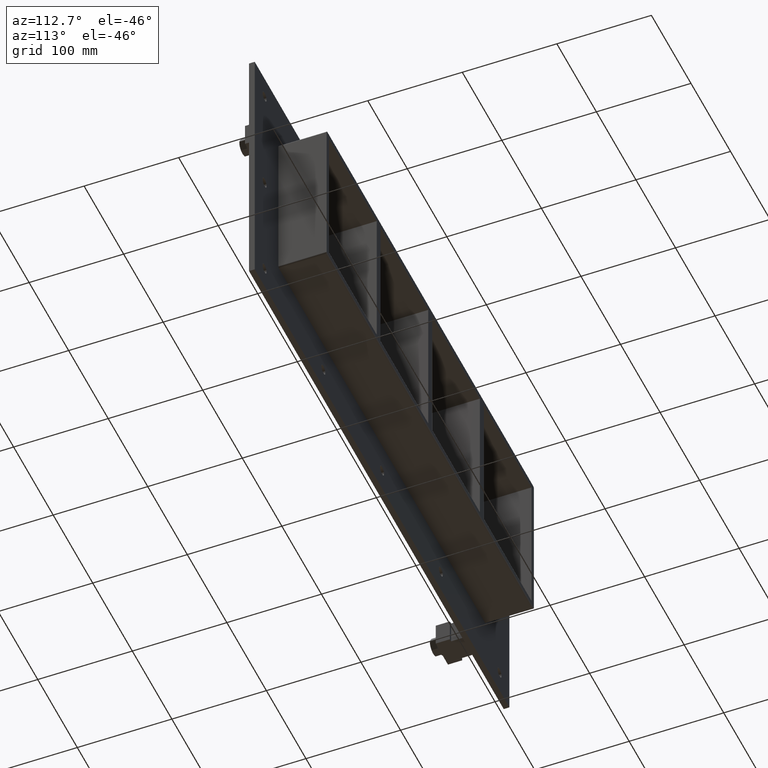
[diagram: clean part render]
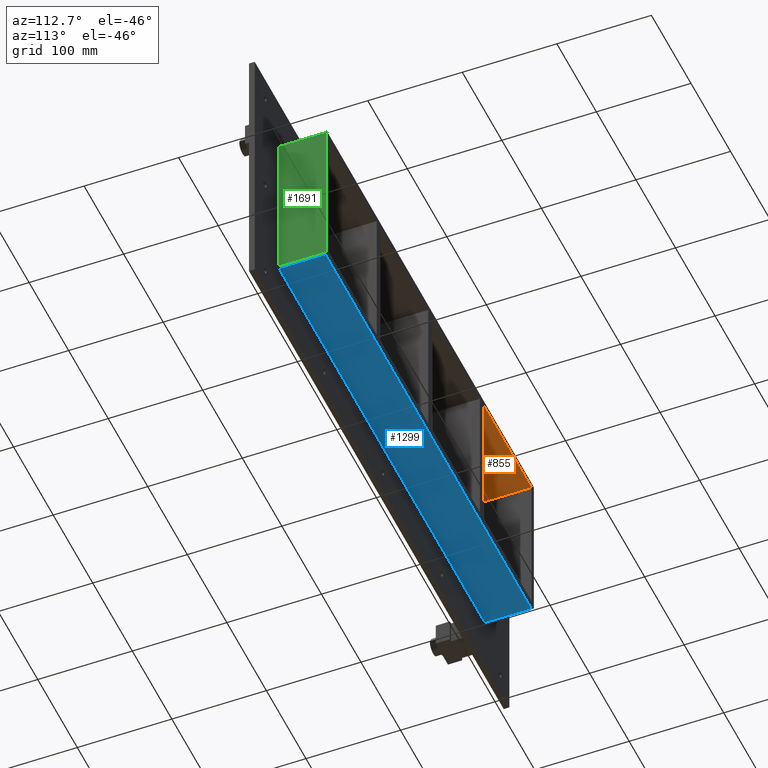
[diagram: same view with three faces highlighted in distinct colors, each labeled with its STEP entity id]
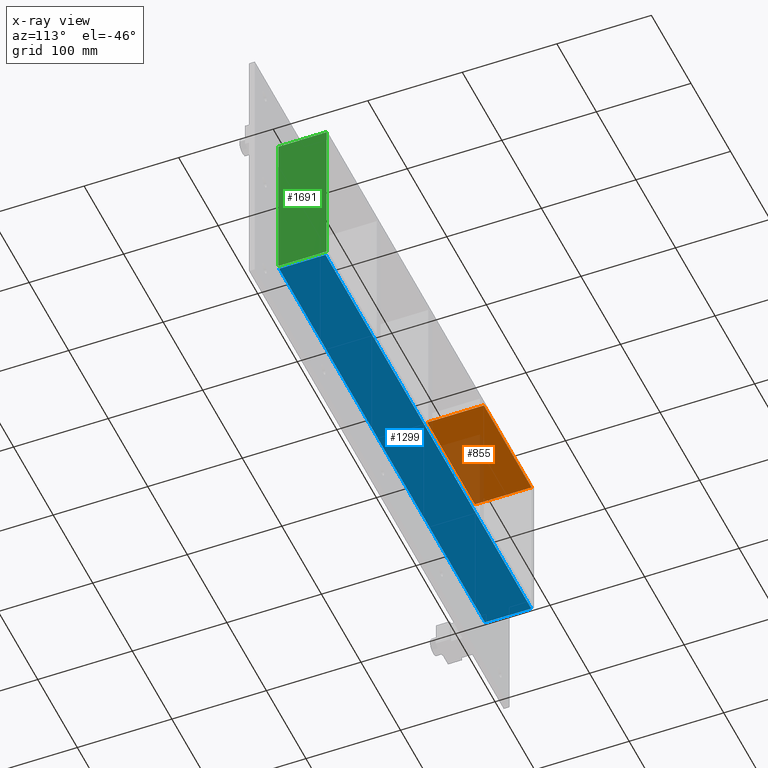
[diagram: x-ray of the same camera — body ghosted, the three highlighted faces saturated]
A machine part, auxiliary view with three faces highlighted in distinct colors.
The next image is the same camera in x-ray (body ghosted, the three faces saturated) — at least one of them is partly hidden behind the body in this view.
Their STEP definitions:

[orange] entity #855 — the highlighted planar face has unit normal (0, 0, 1).
#739=CARTESIAN_POINT('',(-135.50000000000031,-3.0,79.750000000000014));
#740=VERTEX_POINT('',#739);
#747=CARTESIAN_POINT('',(-135.50000000000031,57.0,79.750000000000014));
#748=VERTEX_POINT('',#747);
#749=CARTESIAN_POINT('',(-135.50000000000031,57.000000000000007,79.750000000000014));
#750=DIRECTION('',(0.0,-1.0,0.0));
#751=VECTOR('',#750,60.000000000000007);
#752=LINE('',#749,#751);
#753=EDGE_CURVE('',#748,#740,#752,.T.);
#825=CARTESIAN_POINT('',(-256.0,0.0,79.750000000000014));
#826=DIRECTION('',(0.0,0.0,1.0));
#827=DIRECTION('',(1.0,0.0,0.0));
#828=AXIS2_PLACEMENT_3D('',#825,#826,#827);
#829=PLANE('',#828);
#830=ORIENTED_EDGE('',*,*,#753,.T.);
#831=CARTESIAN_POINT('',(-256.0,-3.0,79.750000000000014));
#832=VERTEX_POINT('',#831);
#833=CARTESIAN_POINT('',(-256.0,-3.0,79.750000000000014));
#834=DIRECTION('',(1.0,0.0,0.0));
#835=VECTOR('',#834,120.49999999999969);
#836=LINE('',#833,#835);
#837=EDGE_CURVE('',#832,#740,#836,.T.);
#838=ORIENTED_EDGE('',*,*,#837,.F.);
#839=CARTESIAN_POINT('',(-256.0,57.0,79.750000000000014));
#840=VERTEX_POINT('',#839);
#841=CARTESIAN_POINT('',(-256.0,-3.0,79.750000000000014));
#842=DIRECTION('',(0.0,1.0,0.0));
#843=VECTOR('',#842,60.0);
#844=LINE('',#841,#843);
#845=EDGE_CURVE('',#832,#840,#844,.T.);
#846=ORIENTED_EDGE('',*,*,#845,.T.);
#847=CARTESIAN_POINT('',(-135.50000000000031,57.0,79.750000000000014));
#848=DIRECTION('',(-1.0,0.0,0.0));
#849=VECTOR('',#848,120.49999999999969);
#850=LINE('',#847,#849);
#851=EDGE_CURVE('',#748,#840,#850,.T.);
#852=ORIENTED_EDGE('',*,*,#851,.F.);
#853=EDGE_LOOP('',(#830,#838,#846,#852));
#854=FACE_OUTER_BOUND('',#853,.T.);
#855=ADVANCED_FACE('',(#854),#829,.F.);

[blue] entity #1299 — the highlighted planar face has unit normal (0, 0, -1).
#950=CARTESIAN_POINT('',(-260.0,6.000000000000001,-85.749999999999957));
#951=VERTEX_POINT('',#950);
#959=CARTESIAN_POINT('',(260.0,6.000000000000001,-85.749999999999957));
#960=VERTEX_POINT('',#959);
#961=CARTESIAN_POINT('',(260.0,6.000000000000001,-85.749999999999957));
#962=DIRECTION('',(-1.0,0.0,0.0));
#963=VECTOR('',#962,520.0);
#964=LINE('',#961,#963);
#965=EDGE_CURVE('',#960,#951,#964,.T.);
#1269=CARTESIAN_POINT('',(262.0,0.0,-85.749999999999957));
#1270=DIRECTION('',(0.0,0.0,-1.0));
#1271=DIRECTION('',(-1.0,0.0,0.0));
#1272=AXIS2_PLACEMENT_3D('',#1269,#1270,#1271);
#1273=PLANE('',#1272);
#1274=ORIENTED_EDGE('',*,*,#965,.T.);
#1275=CARTESIAN_POINT('',(-260.0,55.0,-85.749999999999957));
#1276=VERTEX_POINT('',#1275);
#1277=CARTESIAN_POINT('',(-260.0,55.0,-85.749999999999957));
#1278=DIRECTION('',(0.0,-1.0,0.0));
#1279=VECTOR('',#1278,49.0);
#1280=LINE('',#1277,#1279);
#1281=EDGE_CURVE('',#1276,#951,#1280,.T.);
#1282=ORIENTED_EDGE('',*,*,#1281,.F.);
#1283=CARTESIAN_POINT('',(260.0,55.0,-85.749999999999957));
#1284=VERTEX_POINT('',#1283);
#1285=CARTESIAN_POINT('',(260.0,55.0,-85.749999999999957));
#1286=DIRECTION('',(-1.0,0.0,0.0));
#1287=VECTOR('',#1286,520.0);
#1288=LINE('',#1285,#1287);
#1289=EDGE_CURVE('',#1284,#1276,#1288,.T.);
#1290=ORIENTED_EDGE('',*,*,#1289,.F.);
#1291=CARTESIAN_POINT('',(260.0,6.000000000000001,-85.749999999999957));
#1292=DIRECTION('',(0.0,1.0,0.0));
#1293=VECTOR('',#1292,49.0);
#1294=LINE('',#1291,#1293);
#1295=EDGE_CURVE('',#960,#1284,#1294,.T.);
#1296=ORIENTED_EDGE('',*,*,#1295,.F.);
#1297=EDGE_LOOP('',(#1274,#1282,#1290,#1296));
#1298=FACE_OUTER_BOUND('',#1297,.T.);
#1299=ADVANCED_FACE('',(#1298),#1273,.T.);

[green] entity #1691 — the highlighted planar face has unit normal (1, 0, 0).
#967=CARTESIAN_POINT('',(262.0,6.000000000000001,-83.749999999999972));
#968=VERTEX_POINT('',#967);
#976=CARTESIAN_POINT('',(262.0,6.000000000000001,83.749999999999972));
#977=VERTEX_POINT('',#976);
#978=CARTESIAN_POINT('',(262.0,6.000000000000001,83.749999999999972));
#979=DIRECTION('',(0.0,0.0,-1.0));
#980=VECTOR('',#979,167.49999999999994);
#981=LINE('',#978,#980);
#982=EDGE_CURVE('',#977,#968,#981,.T.);
#1332=CARTESIAN_POINT('',(262.0,57.0,-83.749999999999972));
#1333=VERTEX_POINT('',#1332);
#1341=CARTESIAN_POINT('',(262.0,57.0,-83.749999999999972));
#1342=DIRECTION('',(0.0,-1.0,0.0));
#1343=VECTOR('',#1342,51.0);
#1344=LINE('',#1341,#1343);
#1345=EDGE_CURVE('',#1333,#968,#1344,.T.);
#1656=CARTESIAN_POINT('',(262.0,57.0,83.749999999999972));
#1657=VERTEX_POINT('',#1656);
#1658=CARTESIAN_POINT('',(262.0,6.000000000000001,83.749999999999972));
#1659=DIRECTION('',(0.0,1.0,0.0));
#1660=VECTOR('',#1659,51.0);
#1661=LINE('',#1658,#1660);
#1662=EDGE_CURVE('',#977,#1657,#1661,.T.);
#1675=CARTESIAN_POINT('',(262.0,0.0,85.749999999999957));
#1676=DIRECTION('',(1.0,0.0,0.0));
#1677=DIRECTION('',(0.0,0.0,-1.0));
#1678=AXIS2_PLACEMENT_3D('',#1675,#1676,#1677);
#1679=PLANE('',#1678);
#1680=ORIENTED_EDGE('',*,*,#982,.T.);
#1681=ORIENTED_EDGE('',*,*,#1345,.F.);
#1682=CARTESIAN_POINT('',(262.0,57.0,83.749999999999972));
#1683=DIRECTION('',(0.0,0.0,-1.0));
#1684=VECTOR('',#1683,167.49999999999994);
#1685=LINE('',#1682,#1684);
#1686=EDGE_CURVE('',#1657,#1333,#1685,.T.);
#1687=ORIENTED_EDGE('',*,*,#1686,.F.);
#1688=ORIENTED_EDGE('',*,*,#1662,.F.);
#1689=EDGE_LOOP('',(#1680,#1681,#1687,#1688));
#1690=FACE_OUTER_BOUND('',#1689,.T.);
#1691=ADVANCED_FACE('',(#1690),#1679,.T.);